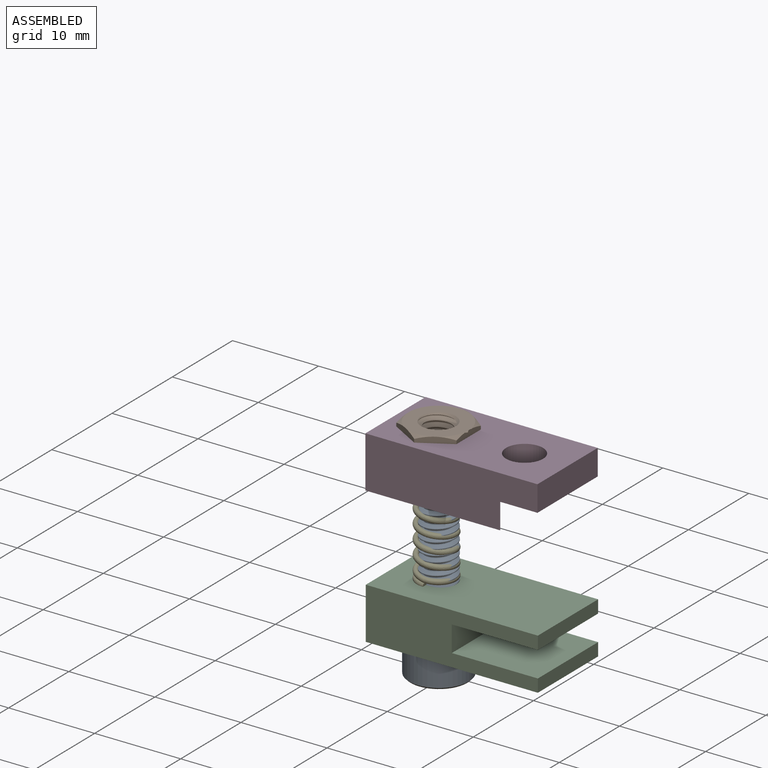
[diagram: assembled view]
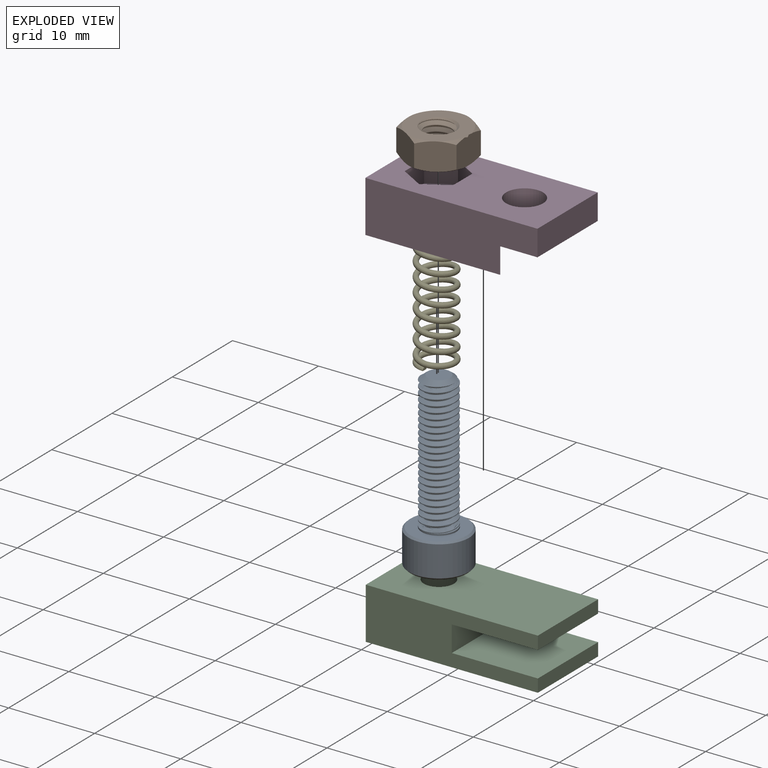
[diagram: exploded view]
GUIDED TOUR — MATED ASSEMBLY (Onshape document 08c0636c03e14159449935a6, AutoMate assembly 08c0636c03e14159449935a6_412e8e957964bb1fcbdede34_2f4fe40fdb106341429659c1_default)

This assembly has 5 components, labeled P0..P4 below (a component is one placed occurrence of a part; the same part can appear more than once), held together by 4 mates. A mate is a constraint between two components; its type names the relative motion it leaves free:
  FASTENED — locks the two components together rigidly (no relative motion).
Axis/direction vectors are unit vectors and 'through' points are millimeter coordinates, both in the assembly's world frame.

MATES
  1. FASTENED "Fastened 1": P3 <-> P1, direction (0.000, 0.000, -1.000) through (-20.39, -20.92, 3.99) mm
  2. FASTENED "Fastened 4": P2 <-> P0, direction (0.000, 0.000, -1.000) through (-20.11, -21.26, -15.21) mm
  3. FASTENED "Fastened 3": P2 <-> P4, direction (0.000, 0.000, 1.000) through (-20.11, -21.26, -9.21) mm
  4. FASTENED "Fastened 2": P4 <-> P3, direction (0.000, 0.000, -1.000) through (-20.39, -22.92, 3.49) mm

ASSEMBLY ORDER
  1. P0 — the base component [order heuristic]
  2. P4 — core [order heuristic]
  3. P3 — core [order heuristic]
  4. P1 — core [order heuristic]
  5. P2 [order verified]
Order-tag legend:
  [order verified] — this step's position reverses a verified removal order: the component was checked to insert without passing through the ones already placed.
  [order heuristic] — the first 4 components form the assembly's core: parts whose collision-free extraction could not be verified, listed in mate-graph order.

Of the 5 components, 1 carries the full construction recipe — the FeatureScript program that regenerates the part's solid from scratch; the rest are supplied as boundary geometry only.
Each toured component is shown spotlighted twice — in the assembled view, then in the exploded view, where a leader line traces a displaced component back to its assembled socket (saturated green if recipe-attached, orange if geometry-only; every other component desaturated gray) — followed by its recipe or geometry summary and the mates that hold it.
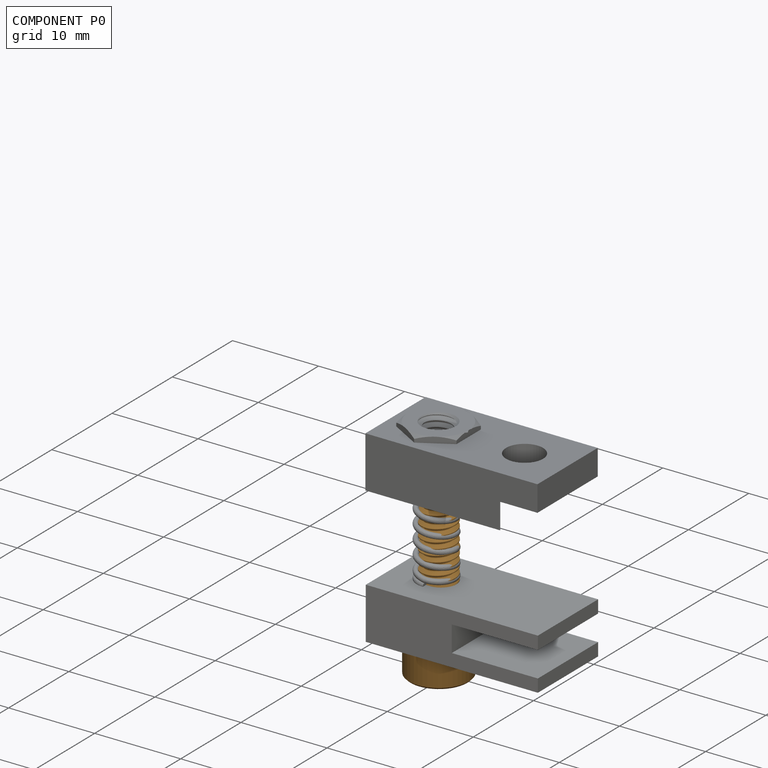
[diagram: component P0 — assembled]
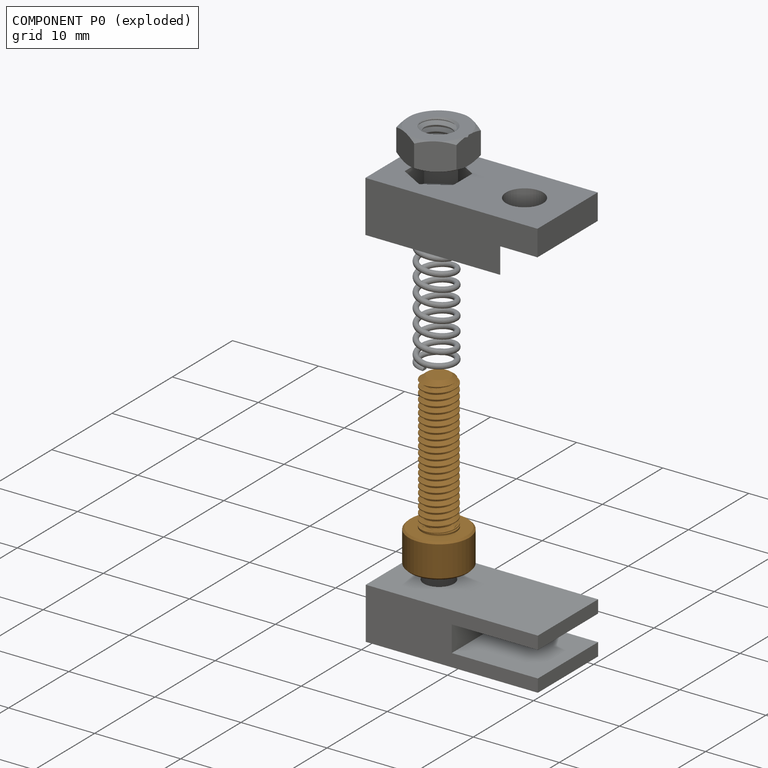
[diagram: component P0 — exploded]
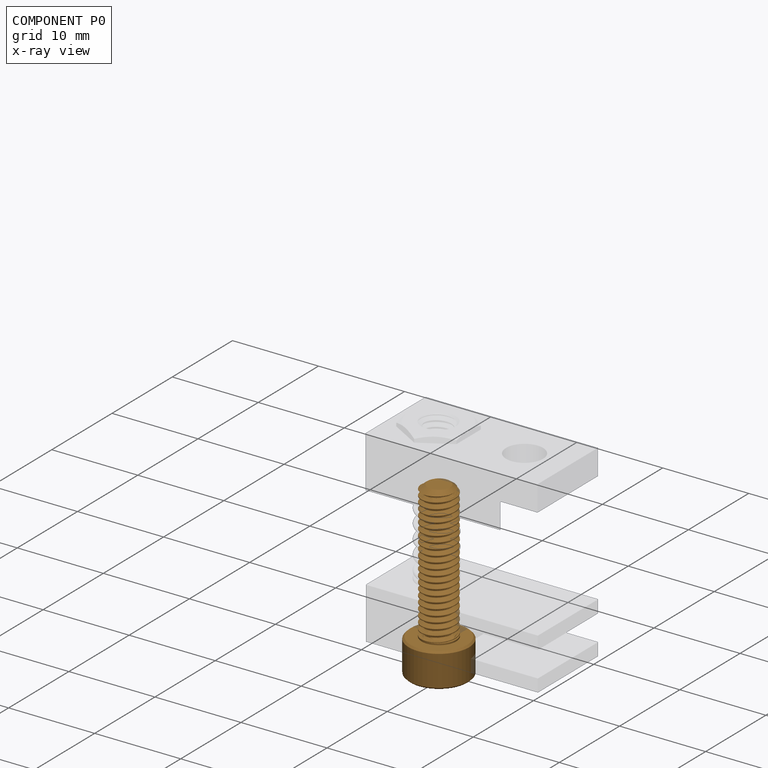
[diagram: component P0 — x-ray view]
COMPONENT P0 — geometry summary (no construction recipe available for this part):
  bounding box: 20.8 x 7.7 x 7.7 mm
  B-rep topology: 1 solid, 117 faces, 660 edges
  volume: 290 mm^3 (24% of its bounding box)
Held by: FASTENED mate "Fastened 4" to P2.
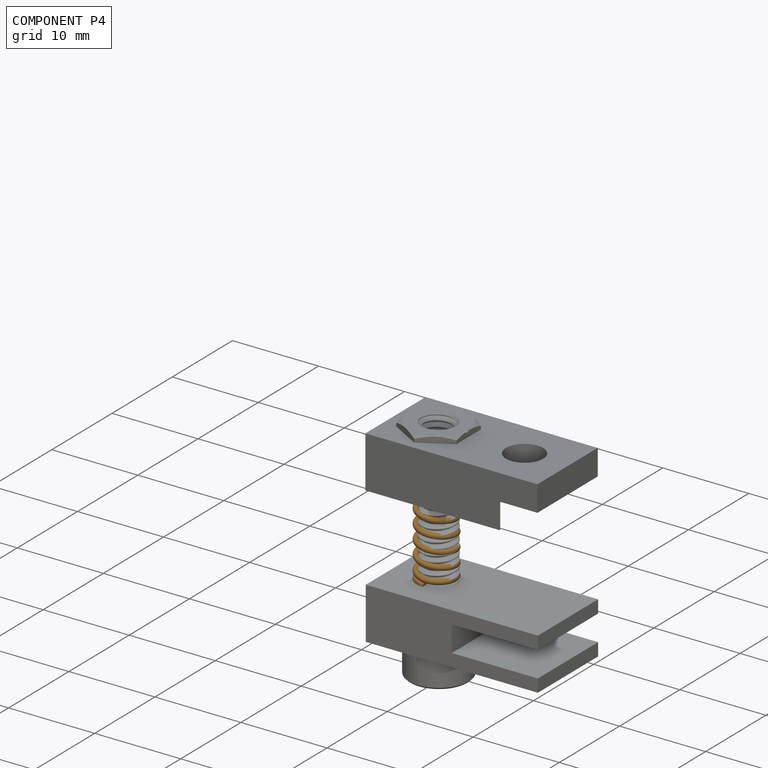
[diagram: component P4 — assembled]
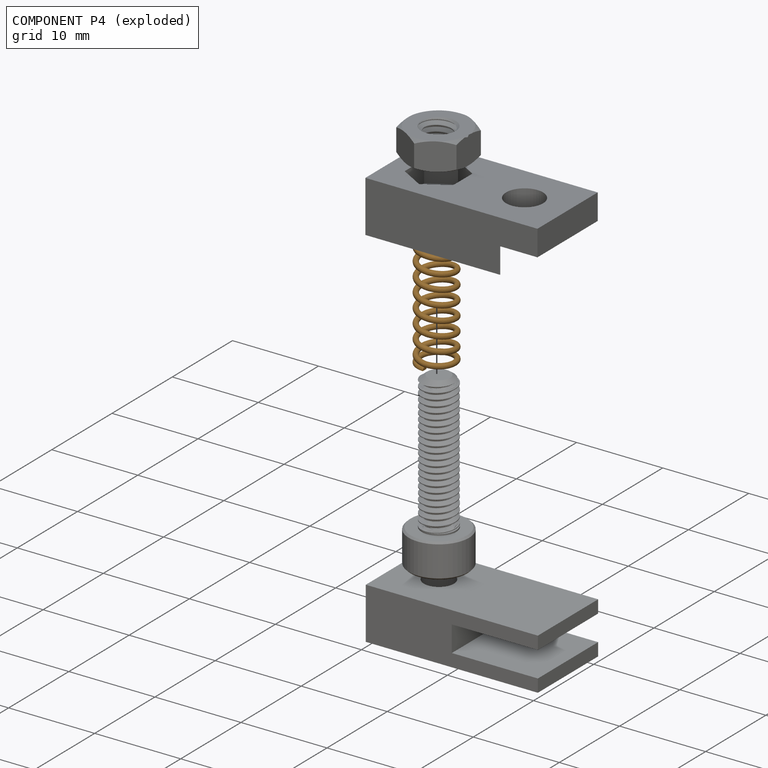
[diagram: component P4 — exploded]
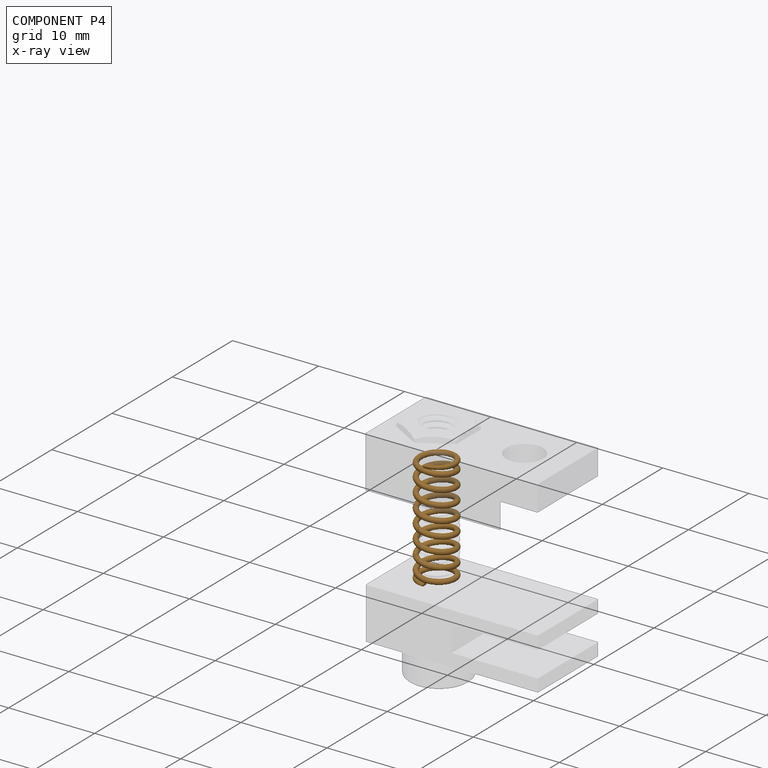
[diagram: component P4 — x-ray view]
COMPONENT P4 — geometry summary (no construction recipe available for this part):
  bounding box: 13.7 x 5.7 x 5.7 mm
  B-rep topology: 1 solid, 10 faces, 40 edges
  volume: 36 mm^3 (8% of its bounding box)
  symmetry: 2-fold rotationally symmetric about the x axis
Held by: FASTENED mate "Fastened 3" to P2; FASTENED mate "Fastened 2" to P3.
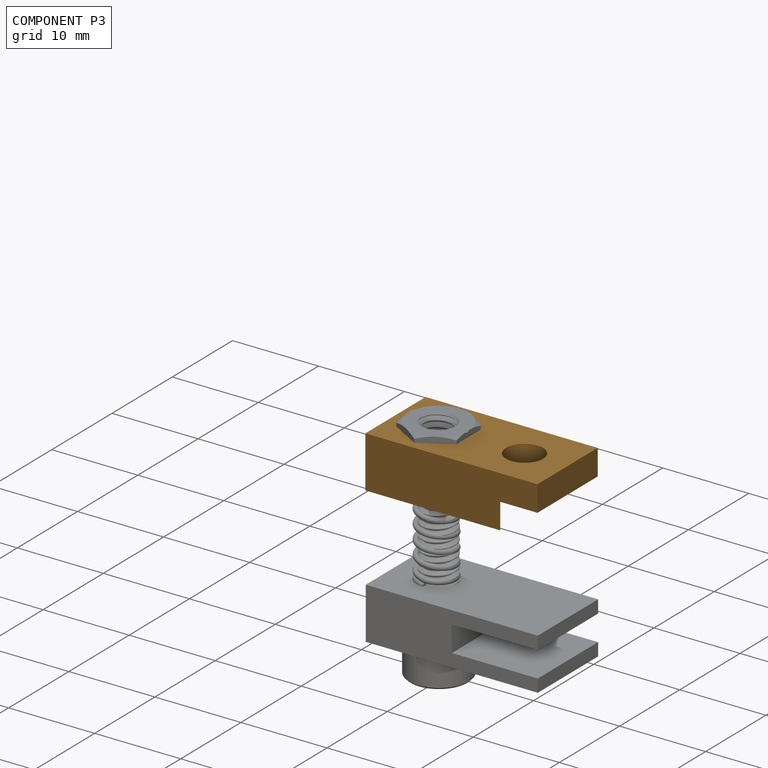
[diagram: component P3 — assembled]
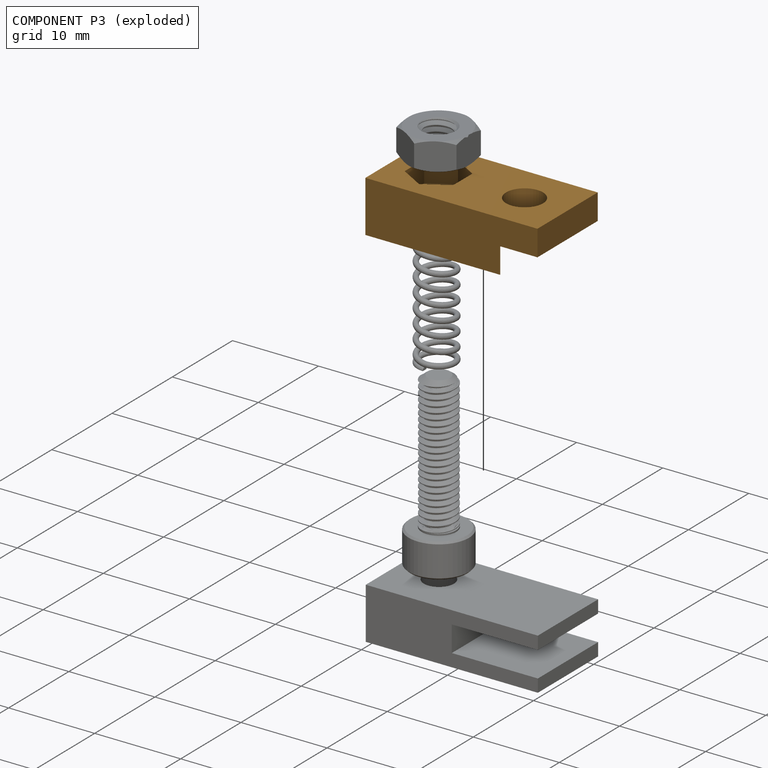
[diagram: component P3 — exploded]
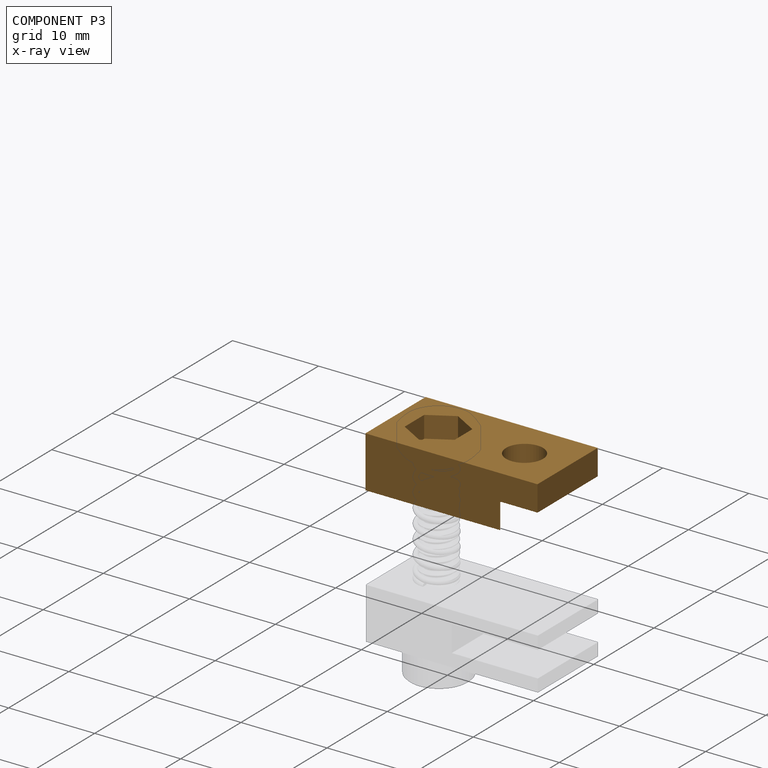
[diagram: component P3 — x-ray view]
COMPONENT P3 — geometry summary (no construction recipe available for this part):
  bounding box: 20.0 x 10.0 x 6.0 mm
  B-rep topology: 1 solid, 19 faces, 100 edges
  volume: 828 mm^3 (69% of its bounding box)
  symmetry: mirror-symmetric across its x mid-plane
Held by: FASTENED mate "Fastened 1" to P1; FASTENED mate "Fastened 2" to P4.
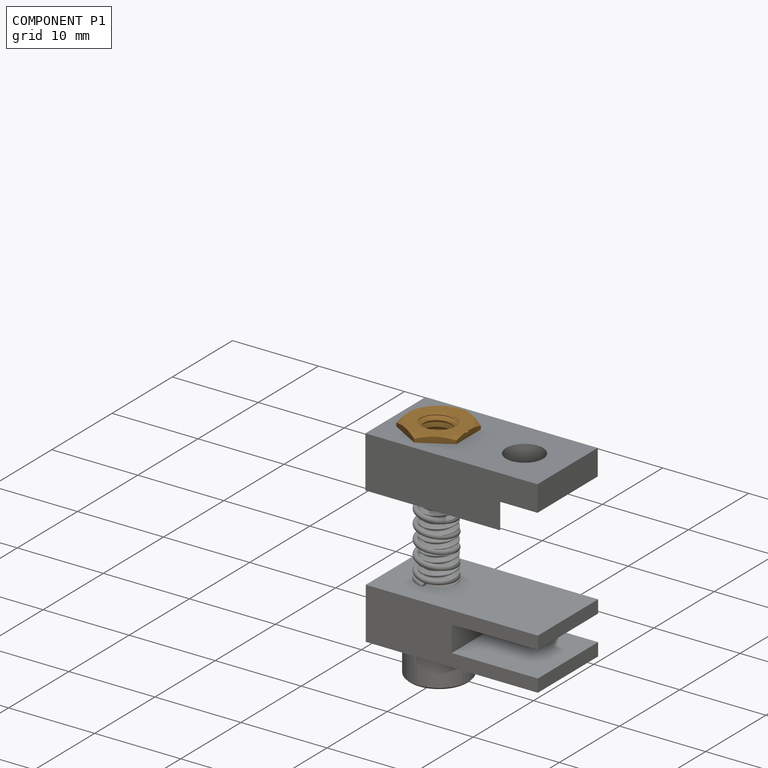
[diagram: component P1 — assembled]
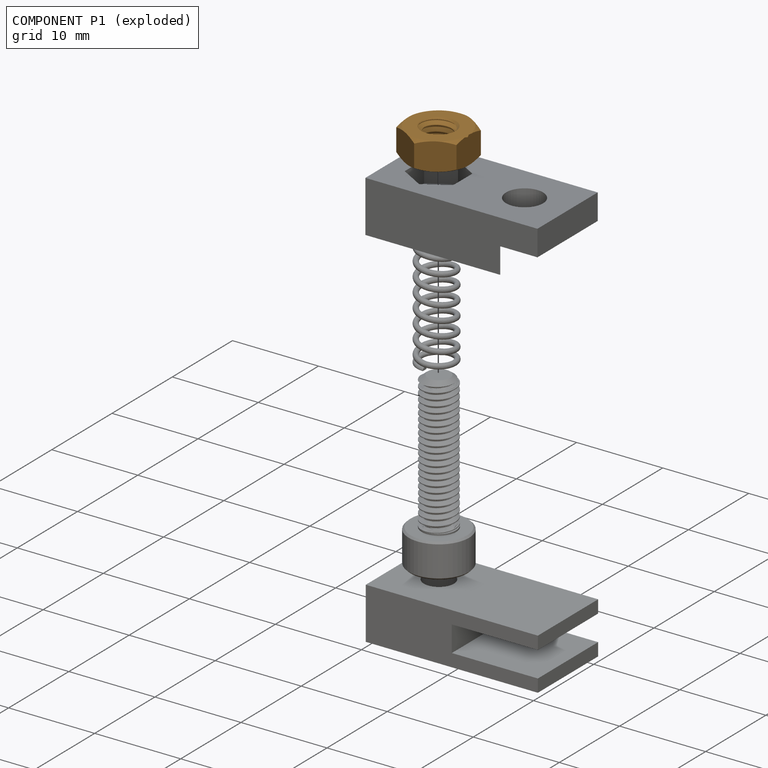
[diagram: component P1 — exploded]
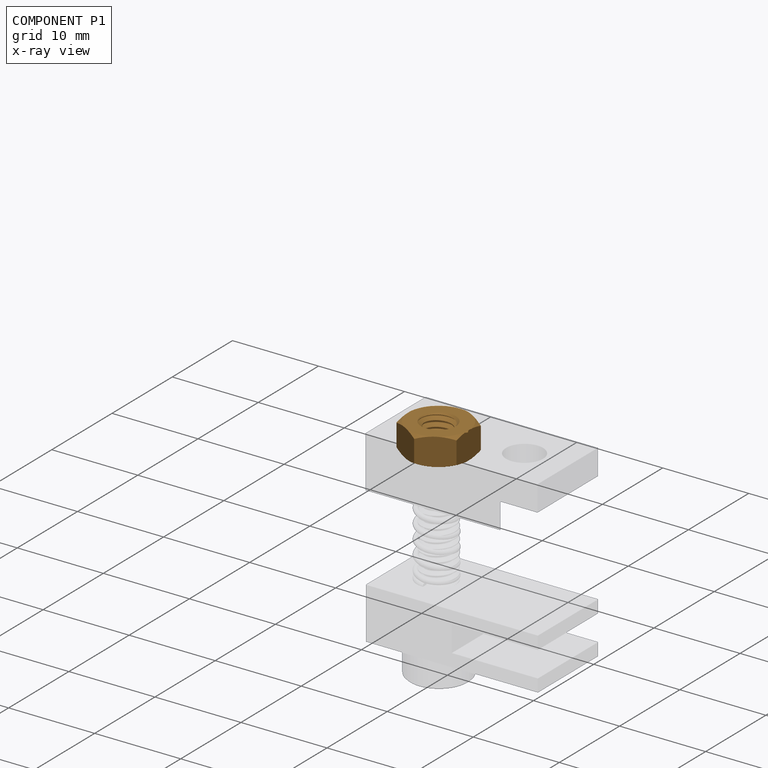
[diagram: component P1 — x-ray view]
COMPONENT P1 — geometry summary (no construction recipe available for this part):
  bounding box: 8.4 x 8.4 x 4.1 mm
  B-rep topology: 1 solid, 39 faces, 190 edges
  volume: 102 mm^3 (35% of its bounding box)
  symmetry: 2-fold rotationally symmetric about the x axis
Held by: FASTENED mate "Fastened 1" to P3.
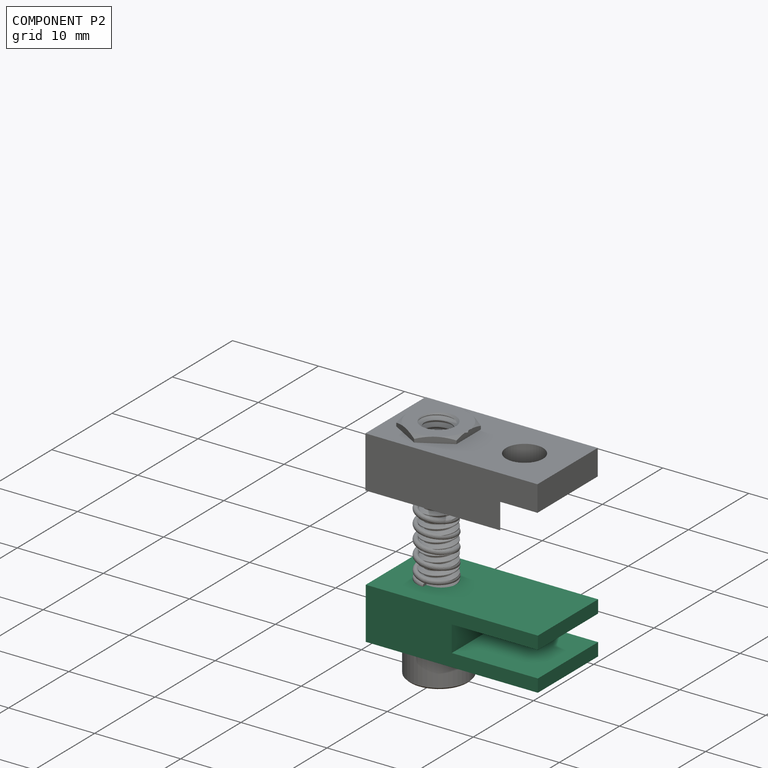
[diagram: component P2 — assembled]
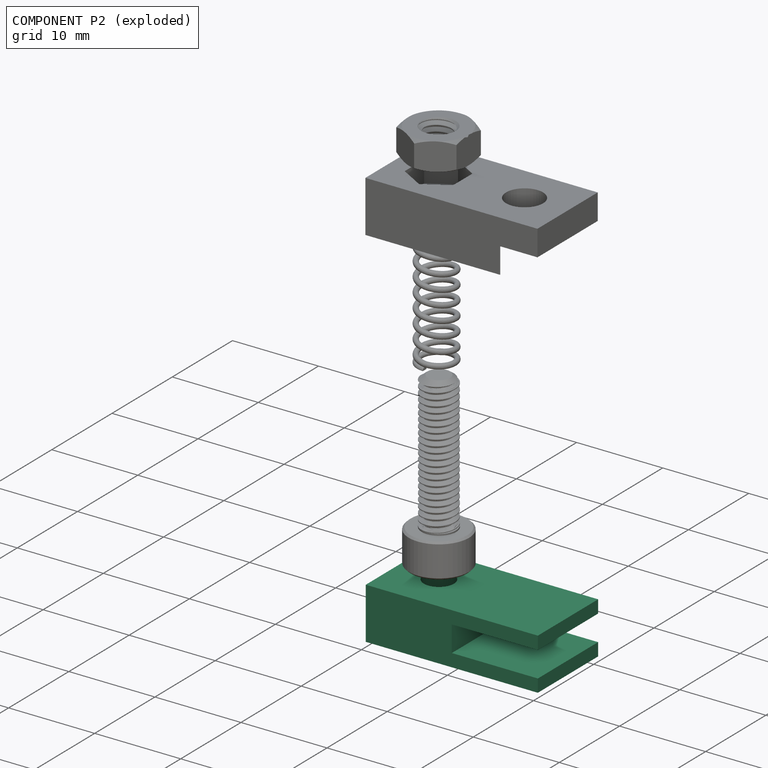
[diagram: component P2 — exploded]
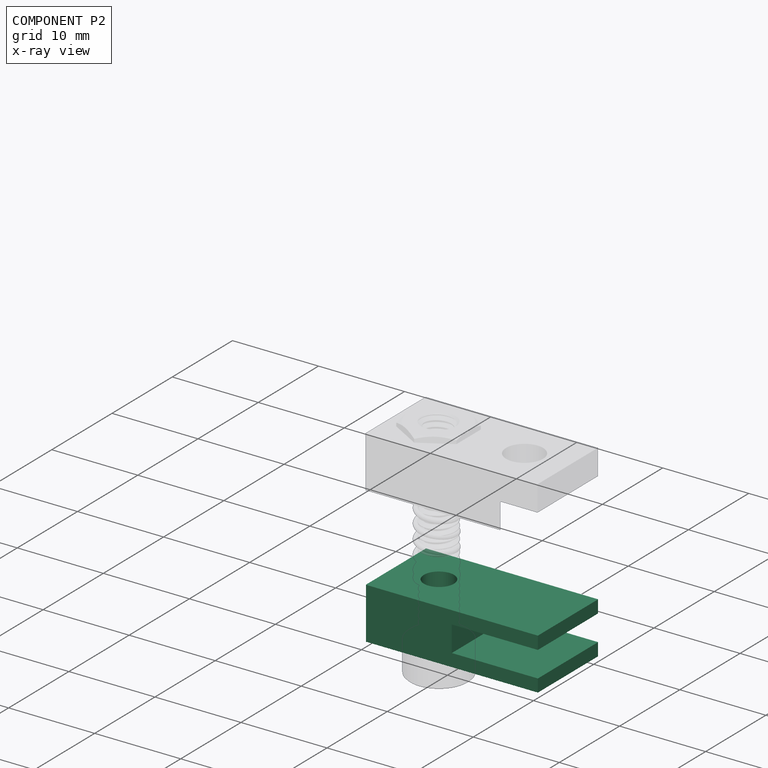
[diagram: component P2 — x-ray view]
COMPONENT P2 — recipe-attached (CADFS 00113995, mesh-verified: the recipe's output STEP matches this component's geometry to below the mesh-comparison resolution (tessellation chordal tolerance ~0.0347 mm)).
Held by: FASTENED mate "Fastened 4" to P0; FASTENED mate "Fastened 3" to P4.
Construction recipe (FeatureScript — the CAD program that rebuilds this solid; sketch coordinates are in the units given by the * unit suffixes, e.g. mm):

FeatureScript 1511;
import(path : "onshape/std/geometry.fs", version : "1511.0");
import(path : "onshape/std/common.fs", version : "1511.0");
const mm = millimeter;
const VERTEX = EntityType.VERTEX;
const EDGE = EntityType.EDGE;
const FACE = EntityType.FACE;
const BODY = EntityType.BODY;
function v(x, y){return vector(x, y);}
function OD(order){return orderDisambiguation(order);}
function OSD(set){return originalSetDisambiguation(set);}
function TD(topology){return topologyDisambiguation(topology);}
function TDD(query){return trueDependencyDisambiguation(query);}
function sQuery(a, b, c) {return sketchEntityQuery(a, b, c);}

annotation { "Feature Type Name" : "Feature", "Feature Type Description" : "" }
export const myFeature = defineFeature(function(context is Context, id is Id, definition is map)
    precondition{}
    {
        {
            var Q0;
            Q0=qCreatedBy(makeId("Right.planeOp"),FACE);
            var sketch = newSketch(context, id + "F0", { "sketchPlane" : qUnion([Q0])});
            skLineSegment(sketch, "E0.bottom", {"start": v(10, -3.07) * mm, "end": v(-10, -3.07) * mm});
            skLineSegment(sketch, "E0.top", {"start": v(10, 2.93) * mm, "end": v(-10, 2.93) * mm});
            skLineSegment(sketch, "E0.left", {"start": v(10, -3.07) * mm, "end": v(10, 2.93) * mm});
            skLineSegment(sketch, "E0.right", {"start": v(-10, -3.07) * mm, "end": v(-10, 2.93) * mm});
            skPoint(sketch, "E0.middle", {"position": v(0, -0.07) * mm});
            skLineSegment(sketch, "E1.bottom", {"start": v(-10, 1.43) * mm, "end": v(0, 1.43) * mm});
            skLineSegment(sketch, "E1.top", {"start": v(-10, -1.57) * mm, "end": v(0, -1.57) * mm});
            skLineSegment(sketch, "E1.left", {"start": v(-10, 1.43) * mm, "end": v(-10, -1.57) * mm});
            skLineSegment(sketch, "E1.right", {"start": v(0, 1.43) * mm, "end": v(0, -1.57) * mm});
            skSolve(sketch);
        }
        {
            var Q0;
            {var subQ1=sQuery(id+"F0.wireOp",EDGE,"E0.bottom");Q0=makeQuery(id+"F0.imprint","IMPRINT",FACE,{"disambiguationData":[TD([[makeQuery(id+"F0.imprint","IMPRINT",EDGE,{"derivedFrom":subQ1}),-1.0]])]});}
            extrude(context, id + "F1", {"entities" : qUnion([Q0]), "depth" : 10 * mm});
        }
        {
            var Q0;
            Q0=makeQuery(id+"F1.opExtrude","SWEPT_FACE",FACE,{"disambiguationData":[OSD([sQuery(id+"F0.wireOp",EDGE,"E0.top")])]});
            var sketch = newSketch(context, id + "F2", { "sketchPlane" : qUnion([Q0])});
            skLineSegment(sketch, "E2", {"start": v(10, 10) * mm, "end": v(0, 0) * mm});
            skCircle(sketch, "E3", {"center": v(5, 5) * mm, "radius": 2.08 * mm});
            skSolve(sketch);
        }
        {
            var Q0;
            Q0=sQuery(id+"F2.wireOp",VERTEX,"E3.center");
            var Q1;
            Q1=makeQuery(id+"F1.opExtrude","SWEPT_BODY",BODY,{"disambiguationData":[OSD([sQuery(id+"F0.wireOp",EDGE,"E0.bottom"),sQuery(id+"F0.wireOp",EDGE,"E0.top"),sQuery(id+"F0.wireOp",EDGE,"E0.left"),sQuery(id+"F0.wireOp",EDGE,"E0.right"),sQuery(id+"F0.wireOp",EDGE,"E1.bottom"),sQuery(id+"F0.wireOp",EDGE,"E1.top"),sQuery(id+"F0.wireOp",EDGE,"E1.right")])]});
            hole(context, id + "F3", {"style" : HoleStyle.SIMPLE, "endStyle" : HoleEndStyle.THROUGH, "holeDiameter" : 3.5 * mm, "locations" : qUnion([Q0]), "scope" : qUnion([Q1]), "isTappedThrough" : true});
        }
    });
PROVENANCE & LICENSES
Assembly (occurrences, transforms, mates, per-part STEP geometry): AutoMate dataset, Zenodo record 7776208, CC0.
Construction recipes: CADFS (HuggingFace VladPyatov/CADFS, CC-BY-4.0, layered over the ABC dataset), FeatureScript reconstruction programs keyed by ABC model id.
Join: ABC meta listings map ABC model id -> Onshape documentId; within a shared document, parts are matched by geometric signature (bounding-box dims + volume at 0.1% relative tolerance, exact B-rep face/solid counts).
Verification: 1 of this assembly's 5 components carries a recipe attachment, and every attachment is mesh-verified: the CADFS STEP and the AutoMate member STEP were compared as meshes in their shared local frame (symmetric sampled-point-to-mesh distance); worst across the 1 attachment: below the mesh-comparison resolution (tessellation chordal tolerance ~0.0347 mm) on a 23 mm part.
Renders: orthographic iso camera (az 35 / el 25); the floor grid conveys scale (grid pitch printed in each image; no ruler). In the exploded view each component is displaced by its stored offset vector: the offsets alone carry the explosion direction (mate normal/axis signs are not orientation cues and do not encode it), and separation distances are assigned per mate-chain, not proportionally to assembly-order depth.
